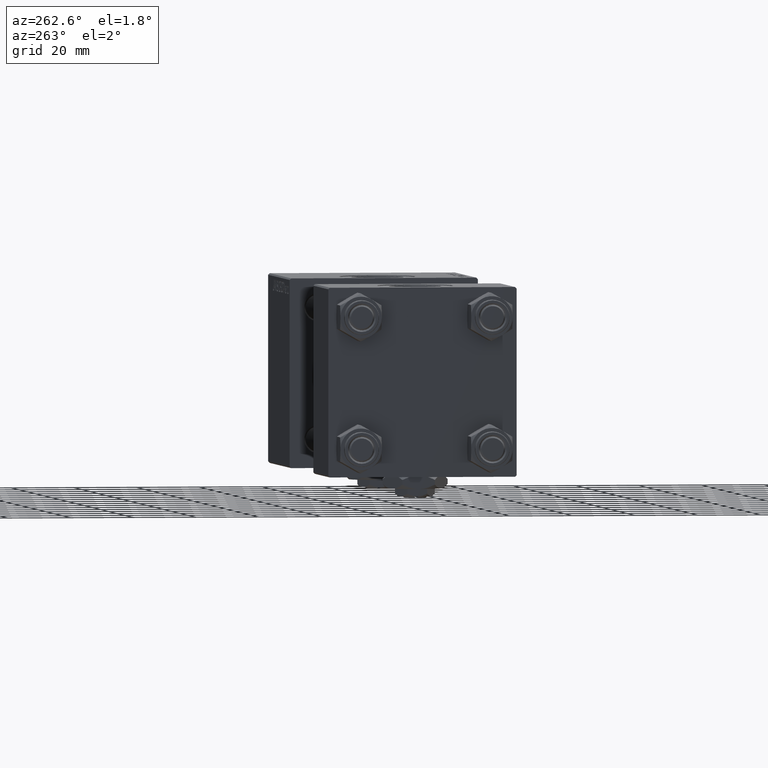
[diagram: clean part render]
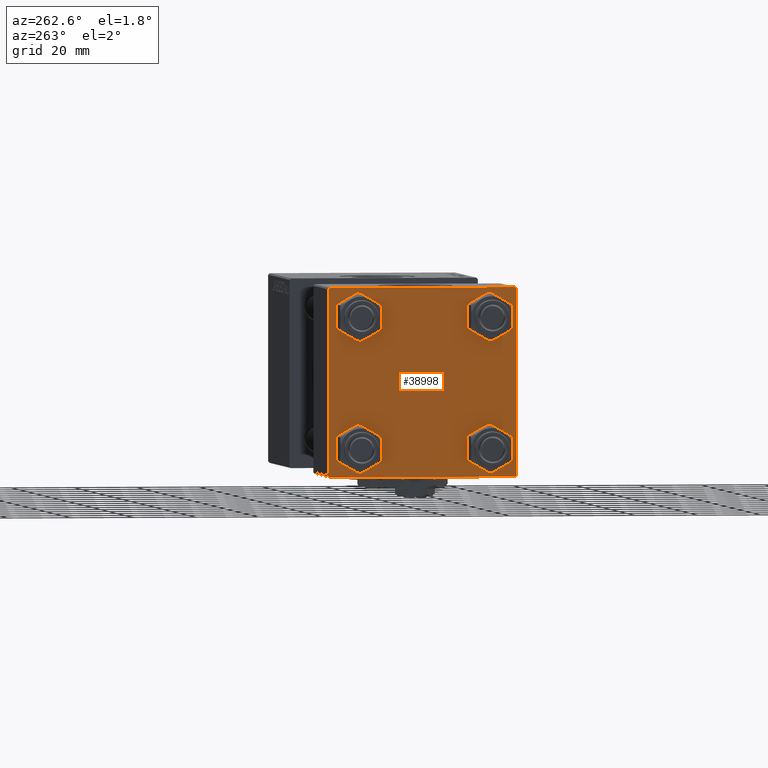
[diagram: same view with one face highlighted and labeled with its STEP entity id]
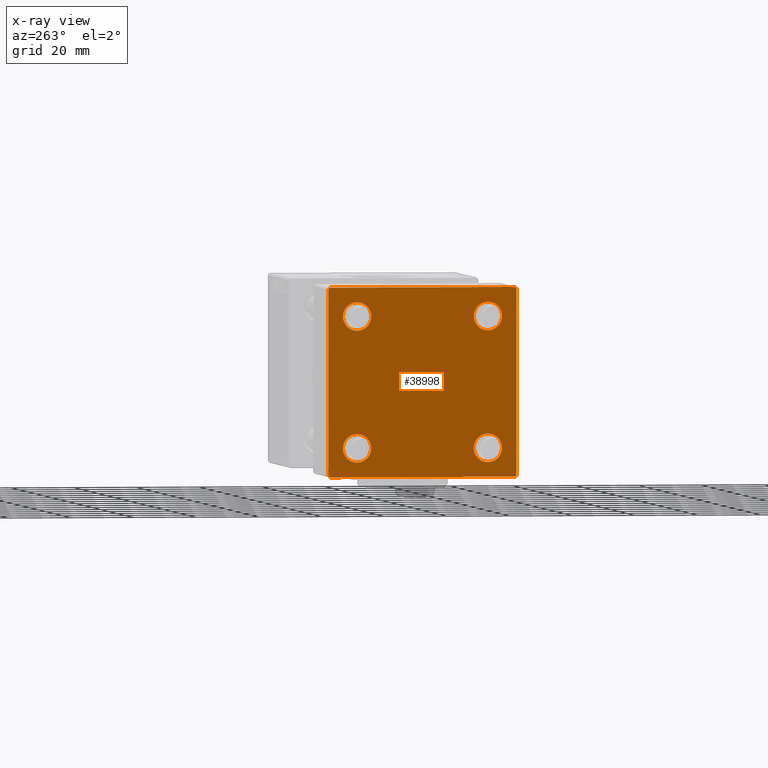
[diagram: x-ray of the same camera — body ghosted, the highlighted face saturated]
A machine part, auxiliary view. The second image highlights one B-rep face of the part: STEP entity #38998.
The next image is the same camera in x-ray: the body ghosted, the highlighted face saturated — about 0% of this face is hidden behind the body in this view.
In plain terms, the highlighted planar face has unit normal (-1, 0, 0).
Its self-contained STEP definition (entity closure, byte-faithful):
#1094 = CARTESIAN_POINT ( 'NONE',  ( 0.000000000000000000, 20.84999999999999787, -20.85000000000000142 ) ) ;
#1413 = CARTESIAN_POINT ( 'NONE',  ( 0.000000000000000000, -20.84999999999999076, -20.85000000000000497 ) ) ;
#1662 = DIRECTION ( 'NONE',  ( -0.000000000000000000, 0.7071067811865474617, 0.7071067811865474617 ) ) ;
#1919 = ORIENTED_EDGE ( 'NONE', *, *, #38860, .T. ) ;
#3500 = CARTESIAN_POINT ( 'NONE',  ( 0.000000000000000000, 0.000000000000000000, 0.000000000000000000 ) ) ;
#3504 = CARTESIAN_POINT ( 'NONE',  ( 0.000000000000000000, -29.49999999999998579, 29.99999999999999289 ) ) ;
#3751 = CARTESIAN_POINT ( 'NONE',  ( 0.000000000000000000, 29.74999999999957723, -29.75000000000040501 ) ) ;
#4032 = PLANE ( 'NONE',  #47868 ) ;
#4192 = CARTESIAN_POINT ( 'NONE',  ( 0.000000000000000000, -20.84999999999999076, -25.35000000000002274 ) ) ;
#4574 = CARTESIAN_POINT ( 'NONE',  ( 0.000000000000000000, 20.84999999999999787, -25.35000000000001918 ) ) ;
#4808 = DIRECTION ( 'NONE',  ( -0.000000000000000000, -0.7071067811865574537, -0.7071067811865376918 ) ) ;
#5272 = DIRECTION ( 'NONE',  ( 0.000000000000000000, 0.000000000000000000, -1.000000000000000000 ) ) ;
#6071 = LINE ( 'NONE', #14090, #17465 ) ;
#6375 = EDGE_LOOP ( 'NONE', ( #6569, #16211 ) ) ;
#6555 = VERTEX_POINT ( 'NONE', #26614 ) ;
#6569 = ORIENTED_EDGE ( 'NONE', *, *, #8763, .T. ) ;
#6901 = CARTESIAN_POINT ( 'NONE',  ( 0.000000000000000000, 29.99999999999999289, 29.50000000000000000 ) ) ;
#6991 = DIRECTION ( 'NONE',  ( 0.000000000000000000, 0.000000000000000000, 1.000000000000000000 ) ) ;
#7342 = CIRCLE ( 'NONE', #22705, 4.500000000000017764 ) ;
#7457 = DIRECTION ( 'NONE',  ( 0.000000000000000000, -1.000000000000000000, -1.156482317317871725E-16 ) ) ;
#7985 = LINE ( 'NONE', #40540, #8057 ) ;
#8057 = VECTOR ( 'NONE', #7457, 1000.000000000000000 ) ;
#8063 = CIRCLE ( 'NONE', #39610, 4.500000000000017764 ) ;
#8363 = DIRECTION ( 'NONE',  ( 1.000000000000000000, -0.000000000000000000, 0.000000000000000000 ) ) ;
#8508 = ORIENTED_EDGE ( 'NONE', *, *, #37887, .T. ) ;
#8763 = EDGE_CURVE ( 'NONE', #23429, #51640, #8063, .T. ) ;
#9115 = DIRECTION ( 'NONE',  ( 0.000000000000000000, 0.000000000000000000, 1.000000000000000000 ) ) ;
#9609 = CARTESIAN_POINT ( 'NONE',  ( 0.000000000000000000, -30.00000000000000000, 29.99999999999999289 ) ) ;
#10386 = EDGE_CURVE ( 'NONE', #44678, #36408, #26714, .T. ) ;
#10904 = AXIS2_PLACEMENT_3D ( 'NONE', #1413, #18491, #17953 ) ;
#11477 = ORIENTED_EDGE ( 'NONE', *, *, #42890, .T. ) ;
#11655 = EDGE_CURVE ( 'NONE', #41088, #6555, #29345, .T. ) ;
#12032 = FACE_BOUND ( 'NONE', #6375, .T. ) ;
#12075 = ORIENTED_EDGE ( 'NONE', *, *, #46688, .T. ) ;
#12356 = CARTESIAN_POINT ( 'NONE',  ( 0.000000000000000000, -20.84999999999999076, -20.85000000000000497 ) ) ;
#13020 = EDGE_CURVE ( 'NONE', #50491, #29585, #6071, .T. ) ;
#13077 = LINE ( 'NONE', #3751, #16338 ) ;
#13339 = EDGE_LOOP ( 'NONE', ( #29863, #8508 ) ) ;
#13700 = ORIENTED_EDGE ( 'NONE', *, *, #43331, .T. ) ;
#13835 = CARTESIAN_POINT ( 'NONE',  ( 0.000000000000000000, -20.84999999999999076, -16.34999999999998721 ) ) ;
#13886 = CARTESIAN_POINT ( 'NONE',  ( 0.000000000000000000, 20.84999999999999787, 25.35000000000001918 ) ) ;
#13972 = AXIS2_PLACEMENT_3D ( 'NONE', #1094, #33393, #33650 ) ;
#14090 = CARTESIAN_POINT ( 'NONE',  ( 0.000000000000000000, -29.75000000000001066, -29.75000000000001066 ) ) ;
#14961 = VERTEX_POINT ( 'NONE', #16622 ) ;
#15486 = AXIS2_PLACEMENT_3D ( 'NONE', #12356, #8363, #48873 ) ;
#15517 = CARTESIAN_POINT ( 'NONE',  ( 0.000000000000000000, 20.84999999999999787, -20.85000000000000142 ) ) ;
#15698 = DIRECTION ( 'NONE',  ( 0.000000000000000000, -1.000000000000000000, -1.156482317317871725E-16 ) ) ;
#16141 = ORIENTED_EDGE ( 'NONE', *, *, #24196, .T. ) ;
#16211 = ORIENTED_EDGE ( 'NONE', *, *, #50775, .T. ) ;
#16338 = VECTOR ( 'NONE', #4808, 999.9999999999998863 ) ;
#16622 = CARTESIAN_POINT ( 'NONE',  ( 0.000000000000000000, -30.00000000000000000, 29.49999999999999289 ) ) ;
#17208 = VECTOR ( 'NONE', #15698, 1000.000000000000000 ) ;
#17465 = VECTOR ( 'NONE', #46606, 1000.000000000000114 ) ;
#17953 = DIRECTION ( 'NONE',  ( 0.000000000000000000, 0.000000000000000000, 1.000000000000000000 ) ) ;
#18491 = DIRECTION ( 'NONE',  ( 1.000000000000000000, -0.000000000000000000, 0.000000000000000000 ) ) ;
#19581 = DIRECTION ( 'NONE',  ( 0.000000000000000000, 0.000000000000000000, 1.000000000000000000 ) ) ;
#19814 = DIRECTION ( 'NONE',  ( 1.000000000000000000, -0.000000000000000000, 0.000000000000000000 ) ) ;
#20106 = DIRECTION ( 'NONE',  ( 1.000000000000000000, -0.000000000000000000, 0.000000000000000000 ) ) ;
#20609 = EDGE_CURVE ( 'NONE', #46933, #43711, #27107, .T. ) ;
#20798 = CIRCLE ( 'NONE', #13972, 4.500000000000017764 ) ;
#20941 = ORIENTED_EDGE ( 'NONE', *, *, #49381, .T. ) ;
#21584 = EDGE_LOOP ( 'NONE', ( #20941, #11477 ) ) ;
#21827 = CARTESIAN_POINT ( 'NONE',  ( 0.000000000000000000, 29.99999999999999289, 30.00000000000000000 ) ) ;
#22217 = CARTESIAN_POINT ( 'NONE',  ( 0.000000000000000000, -20.84999999999999076, 25.35000000000002274 ) ) ;
#22705 = AXIS2_PLACEMENT_3D ( 'NONE', #46725, #35013, #6991 ) ;
#23265 = ORIENTED_EDGE ( 'NONE', *, *, #23831, .F. ) ;
#23429 = VERTEX_POINT ( 'NONE', #22217 ) ;
#23512 = DIRECTION ( 'NONE',  ( 0.000000000000000000, 0.7071067811865474617, -0.7071067811865474617 ) ) ;
#23540 = FACE_BOUND ( 'NONE', #31215, .T. ) ;
#23831 = EDGE_CURVE ( 'NONE', #14961, #29585, #46396, .T. ) ;
#24196 = EDGE_CURVE ( 'NONE', #36408, #39254, #50320, .T. ) ;
#24336 = CIRCLE ( 'NONE', #27696, 4.500000000000017764 ) ;
#25175 = VECTOR ( 'NONE', #23512, 1000.000000000000114 ) ;
#26614 = CARTESIAN_POINT ( 'NONE',  ( 0.000000000000000000, 20.84999999999999787, -16.34999999999998366 ) ) ;
#26714 = LINE ( 'NONE', #43511, #25175 ) ;
#27010 = LINE ( 'NONE', #31275, #35143 ) ;
#27107 = CIRCLE ( 'NONE', #10904, 4.500000000000017764 ) ;
#27696 = AXIS2_PLACEMENT_3D ( 'NONE', #45142, #20106, #19581 ) ;
#27786 = DIRECTION ( 'NONE',  ( -0.000000000000000000, 0.000000000000000000, 1.000000000000000000 ) ) ;
#27790 = DIRECTION ( 'NONE',  ( 1.000000000000000000, -0.000000000000000000, 0.000000000000000000 ) ) ;
#28022 = VERTEX_POINT ( 'NONE', #32717 ) ;
#28511 = AXIS2_PLACEMENT_3D ( 'NONE', #15517, #27790, #44059 ) ;
#29345 = CIRCLE ( 'NONE', #28511, 4.500000000000017764 ) ;
#29585 = VERTEX_POINT ( 'NONE', #34257 ) ;
#29666 = ORIENTED_EDGE ( 'NONE', *, *, #37283, .F. ) ;
#29863 = ORIENTED_EDGE ( 'NONE', *, *, #20609, .T. ) ;
#30933 = CARTESIAN_POINT ( 'NONE',  ( 0.000000000000000000, 29.99999999999999289, 30.00000000000000000 ) ) ;
#30953 = ORIENTED_EDGE ( 'NONE', *, *, #37198, .T. ) ;
#31215 = EDGE_LOOP ( 'NONE', ( #13700, #45352 ) ) ;
#31275 = CARTESIAN_POINT ( 'NONE',  ( -0.000000000000000000, -29.74999999999999645, 29.74999999999999645 ) ) ;
#31580 = VERTEX_POINT ( 'NONE', #3504 ) ;
#32717 = CARTESIAN_POINT ( 'NONE',  ( 0.000000000000000000, 20.84999999999999787, 16.34999999999998366 ) ) ;
#33055 = CARTESIAN_POINT ( 'NONE',  ( 0.000000000000000000, 29.99999999999999289, -29.50000000000000000 ) ) ;
#33204 = VECTOR ( 'NONE', #33632, 1000.000000000000000 ) ;
#33393 = DIRECTION ( 'NONE',  ( 1.000000000000000000, -0.000000000000000000, 0.000000000000000000 ) ) ;
#33400 = CARTESIAN_POINT ( 'NONE',  ( 0.000000000000000000, -20.84999999999999076, 20.85000000000000497 ) ) ;
#33632 = DIRECTION ( 'NONE',  ( 0.000000000000000000, 0.000000000000000000, -1.000000000000000000 ) ) ;
#33650 = DIRECTION ( 'NONE',  ( 0.000000000000000000, 0.000000000000000000, 1.000000000000000000 ) ) ;
#34257 = CARTESIAN_POINT ( 'NONE',  ( 0.000000000000000000, -30.00000000000000000, -29.50000000000001776 ) ) ;
#34497 = CARTESIAN_POINT ( 'NONE',  ( 0.000000000000000000, -20.84999999999999076, 16.34999999999998721 ) ) ;
#35013 = DIRECTION ( 'NONE',  ( 1.000000000000000000, -0.000000000000000000, 0.000000000000000000 ) ) ;
#35104 = CIRCLE ( 'NONE', #15486, 4.500000000000017764 ) ;
#35143 = VECTOR ( 'NONE', #1662, 1000.000000000000114 ) ;
#35288 = CARTESIAN_POINT ( 'NONE',  ( 0.000000000000000000, 20.84999999999999787, 20.85000000000000142 ) ) ;
#36408 = VERTEX_POINT ( 'NONE', #6901 ) ;
#36575 = DIRECTION ( 'NONE',  ( -1.000000000000000000, 0.000000000000000000, -0.000000000000000000 ) ) ;
#36967 = CIRCLE ( 'NONE', #43777, 4.500000000000017764 ) ;
#37198 = EDGE_CURVE ( 'NONE', #39254, #43755, #13077, .T. ) ;
#37283 = EDGE_CURVE ( 'NONE', #44678, #31580, #39981, .T. ) ;
#37887 = EDGE_CURVE ( 'NONE', #43711, #46933, #35104, .T. ) ;
#38860 = EDGE_CURVE ( 'NONE', #14961, #31580, #27010, .T. ) ;
#38998 = ADVANCED_FACE ( 'NONE', ( #12032, #48812, #23540, #48549, #44569 ), #4032, .T. ) ;
#39076 = CARTESIAN_POINT ( 'NONE',  ( 0.000000000000000000, -29.50000000000000000, -30.00000000000000711 ) ) ;
#39254 = VERTEX_POINT ( 'NONE', #33055 ) ;
#39610 = AXIS2_PLACEMENT_3D ( 'NONE', #33400, #49372, #9115 ) ;
#39979 = VERTEX_POINT ( 'NONE', #13886 ) ;
#39981 = LINE ( 'NONE', #30933, #17208 ) ;
#40540 = CARTESIAN_POINT ( 'NONE',  ( 0.000000000000000000, 29.99999999999999289, -30.00000000000000000 ) ) ;
#40588 = ORIENTED_EDGE ( 'NONE', *, *, #13020, .T. ) ;
#41088 = VERTEX_POINT ( 'NONE', #4574 ) ;
#42305 = CARTESIAN_POINT ( 'NONE',  ( 0.000000000000000000, 29.49999999999997868, -30.00000000000000000 ) ) ;
#42890 = EDGE_CURVE ( 'NONE', #28022, #39979, #36967, .T. ) ;
#43138 = ORIENTED_EDGE ( 'NONE', *, *, #10386, .T. ) ;
#43331 = EDGE_CURVE ( 'NONE', #6555, #41088, #20798, .T. ) ;
#43511 = CARTESIAN_POINT ( 'NONE',  ( 0.000000000000000000, 29.74999999999999645, 29.74999999999999645 ) ) ;
#43711 = VERTEX_POINT ( 'NONE', #4192 ) ;
#43755 = VERTEX_POINT ( 'NONE', #42305 ) ;
#43777 = AXIS2_PLACEMENT_3D ( 'NONE', #35288, #19814, #47792 ) ;
#43996 = EDGE_LOOP ( 'NONE', ( #16141, #30953, #12075, #40588, #23265, #1919, #29666, #43138 ) ) ;
#44059 = DIRECTION ( 'NONE',  ( 0.000000000000000000, 0.000000000000000000, 1.000000000000000000 ) ) ;
#44569 = FACE_OUTER_BOUND ( 'NONE', #43996, .T. ) ;
#44678 = VERTEX_POINT ( 'NONE', #49075 ) ;
#45142 = CARTESIAN_POINT ( 'NONE',  ( 0.000000000000000000, 20.84999999999999787, 20.85000000000000142 ) ) ;
#45352 = ORIENTED_EDGE ( 'NONE', *, *, #11655, .T. ) ;
#46396 = LINE ( 'NONE', #9609, #33204 ) ;
#46606 = DIRECTION ( 'NONE',  ( 0.000000000000000000, -0.7071067811865474617, 0.7071067811865474617 ) ) ;
#46688 = EDGE_CURVE ( 'NONE', #43755, #50491, #7985, .T. ) ;
#46725 = CARTESIAN_POINT ( 'NONE',  ( 0.000000000000000000, -20.84999999999999076, 20.85000000000000497 ) ) ;
#46802 = VECTOR ( 'NONE', #5272, 1000.000000000000000 ) ;
#46933 = VERTEX_POINT ( 'NONE', #13835 ) ;
#47792 = DIRECTION ( 'NONE',  ( 0.000000000000000000, 0.000000000000000000, 1.000000000000000000 ) ) ;
#47868 = AXIS2_PLACEMENT_3D ( 'NONE', #3500, #36575, #27786 ) ;
#48549 = FACE_BOUND ( 'NONE', #21584, .T. ) ;
#48812 = FACE_BOUND ( 'NONE', #13339, .T. ) ;
#48873 = DIRECTION ( 'NONE',  ( 0.000000000000000000, 0.000000000000000000, 1.000000000000000000 ) ) ;
#49075 = CARTESIAN_POINT ( 'NONE',  ( 0.000000000000000000, 29.49999999999999289, 30.00000000000000000 ) ) ;
#49372 = DIRECTION ( 'NONE',  ( 1.000000000000000000, -0.000000000000000000, 0.000000000000000000 ) ) ;
#49381 = EDGE_CURVE ( 'NONE', #39979, #28022, #24336, .T. ) ;
#50320 = LINE ( 'NONE', #21827, #46802 ) ;
#50491 = VERTEX_POINT ( 'NONE', #39076 ) ;
#50775 = EDGE_CURVE ( 'NONE', #51640, #23429, #7342, .T. ) ;
#51640 = VERTEX_POINT ( 'NONE', #34497 ) ;